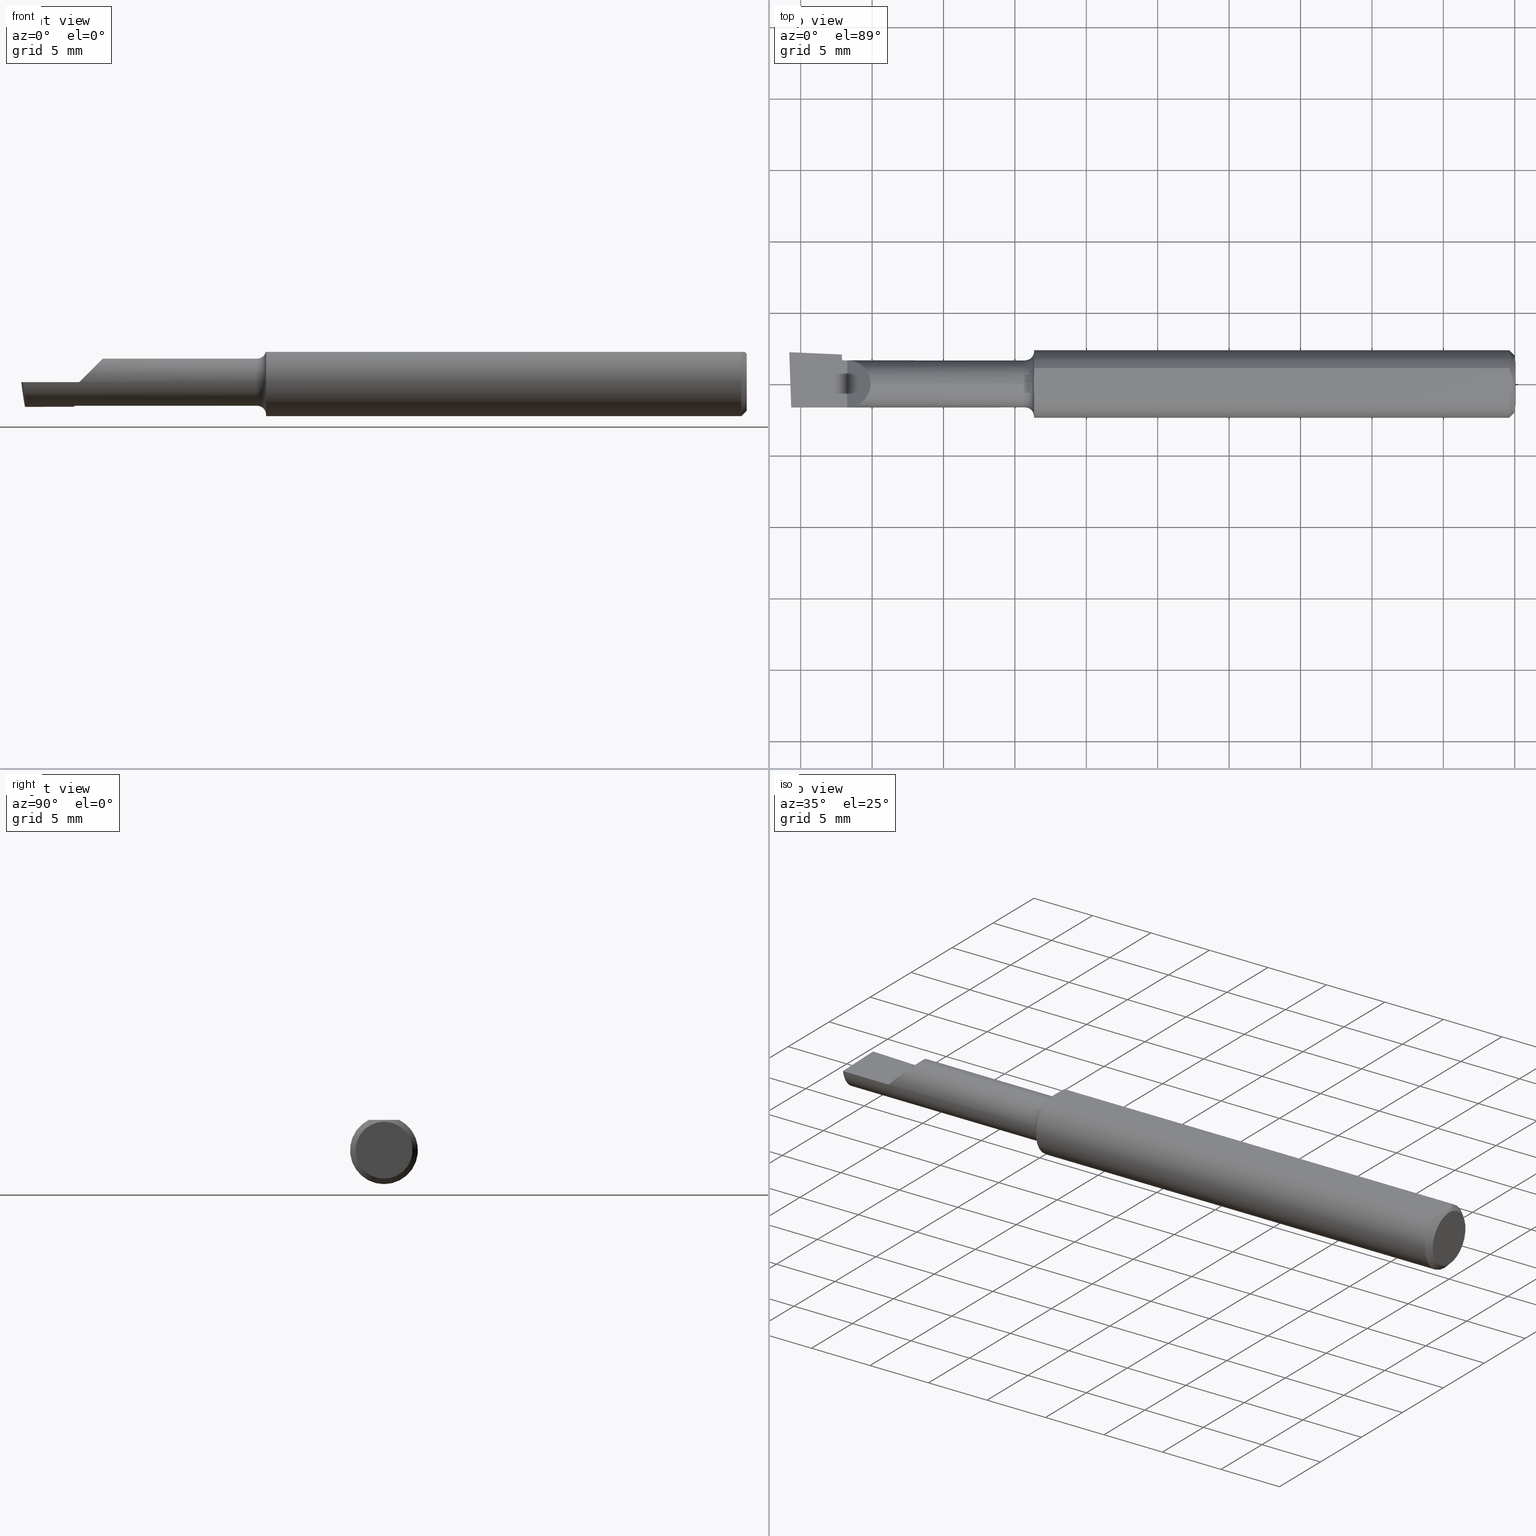
[diagram: canonical four-view strip — front | top / right | iso, engineering-drawing reading convention]
A machine part, canonical four-view strip (front | top / right | iso — engineering-drawing reading convention). The complete STEP part file that produces these views, byte-faithful:
ISO-10303-21;
HEADER;
FILE_DESCRIPTION (( 'STEP AP203' ),
    '1' );
FILE_NAME ('210414-LHBB155.STEP',
    '2024-08-28T20:50:09',
    ( '' ),
    ( '' ),
    'SwSTEP 2.0',
    'SolidWorks 2024',
    '' );
FILE_SCHEMA (( 'CONFIG_CONTROL_DESIGN' ));
ENDSEC;

DATA;
#1 = DIRECTION ( 'NONE',  ( 0.000000000000000000, 0.000000000000000000, 1.000000000000000000 ) ) ;
#2 = VERTEX_POINT ( 'NONE', #345 ) ;
#3 =( GEOMETRIC_REPRESENTATION_CONTEXT ( 3 ) GLOBAL_UNCERTAINTY_ASSIGNED_CONTEXT ( ( #112 ) ) GLOBAL_UNIT_ASSIGNED_CONTEXT ( ( #72, #673, #611 ) ) REPRESENTATION_CONTEXT ( 'NONE', 'WORKASPACE' ) );
#4 = DIRECTION ( 'NONE',  ( 1.000000000000000000, -0.000000000000000000, -0.000000000000000000 ) ) ;
#5 = ORIENTED_EDGE ( 'NONE', *, *, #358, .T. ) ;
#6 = CIRCLE ( 'NONE', #406, 0.09360000000000001652 ) ;
#7 = VECTOR ( 'NONE', #252, 39.37007874015748143 ) ;
#8 = CARTESIAN_POINT ( 'NONE',  ( -2.000000000000000444, 0.04209513035969843220, 0.08359999999999997988 ) ) ;
#9 = ORIENTED_EDGE ( 'NONE', *, *, #46, .T. ) ;
#10 = LINE ( 'NONE', #674, #458 ) ;
#11 = ADVANCED_FACE ( 'NONE', ( #14 ), #73, .T. ) ;
#12 = CARTESIAN_POINT ( 'NONE',  ( -1.850000000000000311, -0.005665123278597552353, -0.06475265537596347487 ) ) ;
#13 = DIRECTION ( 'NONE',  ( 1.000000000000000000, -0.000000000000000000, -0.000000000000000000 ) ) ;
#14 = FACE_OUTER_BOUND ( 'NONE', #544, .T. ) ;
#15 = DIRECTION ( 'NONE',  ( 0.000000000000000000, 0.000000000000000000, -1.000000000000000000 ) ) ;
#16 = CARTESIAN_POINT ( 'NONE',  ( -1.851050603401097838, -0.001891823710786209346, -0.06508277631223417792 ) ) ;
#17 = PRODUCT_RELATED_PRODUCT_CATEGORY ( 'detail', '', ( #23 ) ) ;
#18 = ADVANCED_FACE ( 'NONE', ( #125 ), #56, .F. ) ;
#19 = CARTESIAN_POINT ( 'NONE',  ( -1.350000000000000089, 0.000000000000000000, 0.06500000000000000222 ) ) ;
#20 = DIRECTION ( 'NONE',  ( -1.000000000000000000, 0.000000000000000000, 0.000000000000000000 ) ) ;
#21 = ADVANCED_BREP_SHAPE_REPRESENTATION ( '210414-LHBB155', ( #493, #600 ), #3 ) ;
#22 = DIRECTION ( 'NONE',  ( 0.000000000000000000, -1.000000000000000000, 0.000000000000000000 ) ) ;
#23 = PRODUCT ( '210414-LHBB155', '210414-LHBB155', '', ( #451 ) ) ;
#24 = CARTESIAN_POINT ( 'NONE',  ( 0.000000000000000000, 0.000000000000000000, 0.000000000000000000 ) ) ;
#25 = CARTESIAN_POINT ( 'NONE',  ( -1.325833080461093383, 0.005588935856989981320, 0.08360000000000000764 ) ) ;
#26 = CARTESIAN_POINT ( 'NONE',  ( -1.945637850341565445, 0.03061340754974763503, -0.06792661555281936936 ) ) ;
#27 = PERSON_AND_ORGANIZATION_ROLE ( 'classification_officer' ) ;
#28 = AXIS2_PLACEMENT_3D ( 'NONE', #609, #168, #507 ) ;
#29 = VECTOR ( 'NONE', #325, 39.37007874015748143 ) ;
#30 = DIRECTION ( 'NONE',  ( 0.000000000000000000, 0.000000000000000000, -1.000000000000000000 ) ) ;
#31 = CARTESIAN_POINT ( 'NONE',  ( -1.850000000000000311, 0.000000000000000000, 0.000000000000000000 ) ) ;
#32 = VERTEX_POINT ( 'NONE', #566 ) ;
#33 = CARTESIAN_POINT ( 'NONE',  ( -1.990306868116583416, -0.06488589007838074796, -0.03560733930374125611 ) ) ;
#34 = CARTESIAN_POINT ( 'NONE',  ( -1.325000000000000400, 0.04793338999999999933, 0.08360000000000000764 ) ) ;
#35 = ORIENTED_EDGE ( 'NONE', *, *, #358, .F. ) ;
#36 = AXIS2_PLACEMENT_3D ( 'NONE', #289, #225, #613 ) ;
#37 = DIRECTION ( 'NONE',  ( -1.000000000000000000, 0.000000000000000000, 0.000000000000000000 ) ) ;
#38 = AXIS2_PLACEMENT_3D ( 'NONE', #637, #86, #128 ) ;
#39 = LINE ( 'NONE', #185, #271 ) ;
#40 = ORIENTED_EDGE ( 'NONE', *, *, #269, .F. ) ;
#41 = CIRCLE ( 'NONE', #439, 0.07859999999999815745 ) ;
#42 = DIRECTION ( 'NONE',  ( -1.000000000000000000, 0.000000000000000000, 0.000000000000000000 ) ) ;
#43 = ORIENTED_EDGE ( 'NONE', *, *, #146, .F. ) ;
#44 = PERSON_AND_ORGANIZATION_ROLE ( 'design_supplier' ) ;
#45 = ADVANCED_FACE ( 'NONE', ( #403 ), #394, .T. ) ;
#46 = EDGE_CURVE ( 'NONE', #161, #377, #535, .T. ) ;
#47 = CARTESIAN_POINT ( 'NONE',  ( -1.840000000000000302, -0.06499723071023873200, 0.0005999999999998856725 ) ) ;
#48 = ORIENTED_EDGE ( 'NONE', *, *, #111, .T. ) ;
#49 = CARTESIAN_POINT ( 'NONE',  ( -0.01201717249260179921, -0.03546270869223500793, 0.08360000000000000764 ) ) ;
#50 = ORIENTED_EDGE ( 'NONE', *, *, #46, .F. ) ;
#51 = CARTESIAN_POINT ( 'NONE',  ( -0.009490183762107763307, -0.02858203235736569633, 0.08359999999999997988 ) ) ;
#52 = ORIENTED_EDGE ( 'NONE', *, *, #162, .T. ) ;
#53 = EDGE_LOOP ( 'NONE', ( #52, #129, #702, #191, #653, #55, #43, #575, #580, #375 ) ) ;
#54 = CYLINDRICAL_SURFACE ( 'NONE', #551, 0.06500000000000000222 ) ;
#55 = ORIENTED_EDGE ( 'NONE', *, *, #324, .T. ) ;
#56 = TOROIDAL_SURFACE ( 'NONE', #589, 0.06999999999999999278, 0.005000000000000000104 ) ;
#57 = DIRECTION ( 'NONE',  ( 1.000000000000000000, -0.000000000000000000, -0.000000000000000000 ) ) ;
#58 = CARTESIAN_POINT ( 'NONE',  ( -1.850000000000000311, 0.06500000000000000222, -1.868634782302818344E-17 ) ) ;
#59 = VECTOR ( 'NONE', #57, 39.37007874015748143 ) ;
#60 = VECTOR ( 'NONE', #419, 39.37007874015748854 ) ;
#61 = PERSON_AND_ORGANIZATION ( #88, #211 ) ;
#62 = ADVANCED_FACE ( 'NONE', ( #348 ), #630, .T. ) ;
#63 = FACE_OUTER_BOUND ( 'NONE', #159, .T. ) ;
#64 = DIRECTION ( 'NONE',  ( 1.000000000000000000, -0.000000000000000000, -0.000000000000000000 ) ) ;
#65 = COORDINATED_UNIVERSAL_TIME_OFFSET ( 8, 0, .BEHIND. ) ;
#66 = DIRECTION ( 'NONE',  ( 1.000000000000000000, -0.000000000000000000, -0.000000000000000000 ) ) ;
#67 = AXIS2_PLACEMENT_3D ( 'NONE', #690, #37, #30 ) ;
#68 = DIRECTION ( 'NONE',  ( 0.000000000000000000, 0.000000000000000000, 1.000000000000000000 ) ) ;
#69 = CARTESIAN_POINT ( 'NONE',  ( -1.325833080461093383, 0.000000000000000000, 0.08360000000000000764 ) ) ;
#70 = CARTESIAN_POINT ( 'NONE',  ( -1.855000000000000648, 0.02021677419128699998, -0.06701702799511861930 ) ) ;
#71 = CC_DESIGN_PERSON_AND_ORGANIZATION_ASSIGNMENT ( #319, #44, ( #489 ) ) ;
#72 =( CONVERSION_BASED_UNIT ( 'INCH', #565 ) LENGTH_UNIT ( ) NAMED_UNIT ( #594 ) );
#73 = PLANE ( 'NONE',  #368 ) ;
#74 = CARTESIAN_POINT ( 'NONE',  ( -1.988786421613012667, -0.005665123278597546282, -0.06475265537596341936 ) ) ;
#75 = DIRECTION ( 'NONE',  ( 0.000000000000000000, -1.224646799147353454E-16, -1.000000000000000000 ) ) ;
#76 = DIRECTION ( 'NONE',  ( 1.000000000000000000, -0.000000000000000000, -0.000000000000000000 ) ) ;
#77 = LINE ( 'NONE', #701, #210 ) ;
#78 = VERTEX_POINT ( 'NONE', #221 ) ;
#79 = ORIENTED_EDGE ( 'NONE', *, *, #307, .F. ) ;
#80 = VECTOR ( 'NONE', #327, 39.37007874015748854 ) ;
#81 = EDGE_CURVE ( 'NONE', #711, #89, #564, .T. ) ;
#82 = PLANE ( 'NONE',  #192 ) ;
#83 = PLANE ( 'NONE',  #126 ) ;
#84 = ORIENTED_EDGE ( 'NONE', *, *, #465, .F. ) ;
#85 = DATE_AND_TIME ( #448, #604 ) ;
#86 = DIRECTION ( 'NONE',  ( -1.000000000000000000, 0.000000000000000000, 0.000000000000000000 ) ) ;
#87 = DIRECTION ( 'NONE',  ( 0.000000000000000000, 1.000000000000000000, 0.000000000000000000 ) ) ;
#88 = PERSON ( 'UNSPECIFIED', 'UNSPECIFIED', 'UNSPECIFIED', ('UNSPECIFIED'), ('UNSPECIFIED'), ('UNSPECIFIED') ) ;
#89 = VERTEX_POINT ( 'NONE', #58 ) ;
#90 = APPROVAL_DATE_TIME ( #409, #141 ) ;
#91 = VECTOR ( 'NONE', #396, 39.37007874015748143 ) ;
#92 = CARTESIAN_POINT ( 'NONE',  ( 0.000000000000000000, 0.000000000000000000, 0.000000000000000000 ) ) ;
#93 = ADVANCED_FACE ( 'NONE', ( #508 ), #276, .T. ) ;
#94 = EDGE_CURVE ( 'NONE', #377, #520, #316, .T. ) ;
#95 = EDGE_LOOP ( 'NONE', ( #40, #413, #9, #384, #101, #426 ) ) ;
#96 = CIRCLE ( 'NONE', #429, 0.09360000000000001652 ) ;
#97 = CARTESIAN_POINT ( 'NONE',  ( 0.000000000000000000, 0.000000000000000000, 0.000000000000000000 ) ) ;
#98 = ORIENTED_EDGE ( 'NONE', *, *, #412, .T. ) ;
#99 = ORIENTED_EDGE ( 'NONE', *, *, #631, .F. ) ;
#100 = CARTESIAN_POINT ( 'NONE',  ( -1.933783156355727062, -0.06340542776733958108, -0.4961139287315174395 ) ) ;
#101 = ORIENTED_EDGE ( 'NONE', *, *, #148, .T. ) ;
#102 = DIRECTION ( 'NONE',  ( 0.000000000000000000, 1.000000000000000000, 0.000000000000000000 ) ) ;
#103 = EDGE_LOOP ( 'NONE', ( #207, #511, #50, #599, #593 ) ) ;
#104 = DIRECTION ( 'NONE',  ( -1.000000000000000000, 0.000000000000000000, 0.000000000000000000 ) ) ;
#105 =( BOUNDED_CURVE ( )  B_SPLINE_CURVE ( 3, ( #275, #620, #388, #347 ),
 .UNSPECIFIED., .F., .F. ) 
 B_SPLINE_CURVE_WITH_KNOTS ( ( 4, 4 ),
 ( 4.021702596540523089, 5.179980591436610382 ),
 .UNSPECIFIED. ) 
 CURVE ( )  GEOMETRIC_REPRESENTATION_ITEM ( )  RATIONAL_B_SPLINE_CURVE ( ( 1.000000000000000000, 0.8912894598796772261, 0.8912894598796772261, 1.000000000000000000 ) ) 
 REPRESENTATION_ITEM ( '' )  );
#106 = ORIENTED_EDGE ( 'NONE', *, *, #370, .T. ) ;
#107 = DIRECTION ( 'NONE',  ( 0.000000000000000000, 0.000000000000000000, 1.000000000000000000 ) ) ;
#108 = VERTEX_POINT ( 'NONE', #228 ) ;
#109 = LINE ( 'NONE', #229, #59 ) ;
#110 = EDGE_LOOP ( 'NONE', ( #486, #84, #309, #664, #470, #35 ) ) ;
#111 = EDGE_CURVE ( 'NONE', #2, #492, #145, .T. ) ;
#112 = UNCERTAINTY_MEASURE_WITH_UNIT (LENGTH_MEASURE( 1.000000000000000082E-05 ), #72, 'distance_accuracy_value', 'NONE');
#113 = FACE_OUTER_BOUND ( 'NONE', #110, .T. ) ;
#114 = CARTESIAN_POINT ( 'NONE',  ( -1.325000000000000400, 0.000000000000000000, 0.000000000000000000 ) ) ;
#115 = VECTOR ( 'NONE', #102, 39.37007874015748143 ) ;
#116 = VECTOR ( 'NONE', #4, 39.37007874015748143 ) ;
#117 = CARTESIAN_POINT ( 'NONE',  ( -1.986500062942040623, -0.1007723846355807473, -0.05643184818823019505 ) ) ;
#118 = COORDINATED_UNIVERSAL_TIME_OFFSET ( 8, 0, .BEHIND. ) ;
#119 = CC_DESIGN_PERSON_AND_ORGANIZATION_ASSIGNMENT ( #636, #243, ( #489 ) ) ;
#120 = DIRECTION ( 'NONE',  ( -0.02394144769889285443, 0.9959091512946225411, -0.08713076064000382925 ) ) ;
#121 = AXIS2_PLACEMENT_3D ( 'NONE', #114, #447, #670 ) ;
#122 = CARTESIAN_POINT ( 'NONE',  ( -1.853325552819781841, 0.006623271544731156035, -0.06582775061593533483 ) ) ;
#123 = CARTESIAN_POINT ( 'NONE',  ( -1.325000000000000400, 0.03333226664959939439, 0.08360000000000000764 ) ) ;
#124 = CARTESIAN_POINT ( 'NONE',  ( -1.850000000000000311, -0.005665123278597552353, -0.06475265537596347487 ) ) ;
#125 = FACE_OUTER_BOUND ( 'NONE', #103, .T. ) ;
#126 = AXIS2_PLACEMENT_3D ( 'NONE', #239, #569, #136 ) ;
#127 = PLANE ( 'NONE',  #378 ) ;
#128 = DIRECTION ( 'NONE',  ( 0.000000000000000000, 0.000000000000000000, 1.000000000000000000 ) ) ;
#129 = ORIENTED_EDGE ( 'NONE', *, *, #495, .T. ) ;
#130 = DIRECTION ( 'NONE',  ( -1.000000000000000000, 0.000000000000000000, -0.000000000000000000 ) ) ;
#131 = DIRECTION ( 'NONE',  ( 0.000000000000000000, 0.000000000000000000, -1.000000000000000000 ) ) ;
#132 = EDGE_LOOP ( 'NONE', ( #156, #235, #501, #201, #253 ) ) ;
#133 = EDGE_CURVE ( 'NONE', #78, #161, #560, .T. ) ;
#134 = DATE_AND_TIME ( #529, #700 ) ;
#135 = CARTESIAN_POINT ( 'NONE',  ( -0.005000000000001126807, -9.681310491162589007E-19, 0.08360000000000000764 ) ) ;
#136 = DIRECTION ( 'NONE',  ( 0.000000000000000000, 0.9961946980917454342, -0.08715574274765822138 ) ) ;
#137 = ORIENTED_EDGE ( 'NONE', *, *, #424, .T. ) ;
#138 = CARTESIAN_POINT ( 'NONE',  ( -1.999986001855434736, 0.08759761744008441597, -1.868634782302818344E-17 ) ) ;
#139 = DIRECTION ( 'NONE',  ( 0.000000000000000000, 0.000000000000000000, -1.000000000000000000 ) ) ;
#140 = ORIENTED_EDGE ( 'NONE', *, *, #324, .F. ) ;
#141 = APPROVAL ( #581, 'UNSPECIFIED' ) ;
#142 = ADVANCED_FACE ( 'NONE', ( #173 ), #397, .T. ) ;
#143 = LINE ( 'NONE', #317, #178 ) ;
#144 = ORIENTED_EDGE ( 'NONE', *, *, #196, .F. ) ;
#145 = CIRCLE ( 'NONE', #121, 0.08999999999999999667 ) ;
#146 = EDGE_CURVE ( 'NONE', #602, #386, #77, .T. ) ;
#147 = DIRECTION ( 'NONE',  ( 0.000000000000000000, -8.881784197001252323E-16, 1.000000000000000000 ) ) ;
#148 = EDGE_CURVE ( 'NONE', #520, #554, #143, .T. ) ;
#149 = ORIENTED_EDGE ( 'NONE', *, *, #423, .F. ) ;
#150 = VECTOR ( 'NONE', #452, 39.37007874015748143 ) ;
#151 = AXIS2_PLACEMENT_3D ( 'NONE', #691, #584, #351 ) ;
#152 = LINE ( 'NONE', #100, #80 ) ;
#153 = EDGE_LOOP ( 'NONE', ( #106, #504, #610, #187 ) ) ;
#154 = EDGE_CURVE ( 'NONE', #78, #635, #39, .T. ) ;
#155 = CARTESIAN_POINT ( 'NONE',  ( -1.851556035590118166, 8.550972087520532959E-13, -0.06524828944039233469 ) ) ;
#156 = ORIENTED_EDGE ( 'NONE', *, *, #332, .T. ) ;
#157 = VECTOR ( 'NONE', #251, 39.37007874015748854 ) ;
#158 = CARTESIAN_POINT ( 'NONE',  ( -1.840000000000000302, 0.06499723071023873200, 0.0005999999999998856725 ) ) ;
#159 = EDGE_LOOP ( 'NONE', ( #420, #272, #381 ) ) ;
#160 = CARTESIAN_POINT ( 'NONE',  ( -2.000000000000000444, 0.000000000000000000, -0.09360000000000001652 ) ) ;
#161 = VERTEX_POINT ( 'NONE', #522 ) ;
#162 = EDGE_CURVE ( 'NONE', #520, #567, #679, .T. ) ;
#163 = EDGE_CURVE ( 'NONE', #2, #713, #603, .T. ) ;
#164 = EDGE_LOOP ( 'NONE', ( #683, #262, #328, #576, #707, #417, #506, #214 ) ) ;
#165 = CARTESIAN_POINT ( 'NONE',  ( -1.350000000000000089, 0.000000000000000000, 0.000000000000000000 ) ) ;
#166 = DIRECTION ( 'NONE',  ( 1.000000000000000000, 0.000000000000000000, -0.000000000000000000 ) ) ;
#167 = PLANE ( 'NONE',  #436 ) ;
#168 = DIRECTION ( 'NONE',  ( 1.000000000000000000, -0.000000000000000000, -0.000000000000000000 ) ) ;
#169 = DIRECTION ( 'NONE',  ( -1.000000000000000000, 0.000000000000000000, 0.000000000000000000 ) ) ;
#170 = VECTOR ( 'NONE', #649, 39.37007874015748143 ) ;
#171 = EDGE_CURVE ( 'NONE', #108, #704, #198, .T. ) ;
#172 = LINE ( 'NONE', #117, #240 ) ;
#173 = FACE_OUTER_BOUND ( 'NONE', #153, .T. ) ;
#174 = APPROVAL_ROLE ( '' ) ;
#175 = CARTESIAN_POINT ( 'NONE',  ( -0.01500000000000134212, -0.04209513035969836975, 0.08360000000000000764 ) ) ;
#176 = DIRECTION ( 'NONE',  ( 0.000000000000000000, 0.000000000000000000, -1.000000000000000000 ) ) ;
#177 = CIRCLE ( 'NONE', #38, 0.06500000000000000222 ) ;
#178 = VECTOR ( 'NONE', #574, 39.37007874015748143 ) ;
#179 = FACE_OUTER_BOUND ( 'NONE', #312, .T. ) ;
#180 = CARTESIAN_POINT ( 'NONE',  ( -1.325000000000000178, -0.02777769619494438805, 0.08360000000000000764 ) ) ;
#181 = CARTESIAN_POINT ( 'NONE',  ( -1.850000000000000311, 0.000000000000000000, 0.000000000000000000 ) ) ;
#182 = CONICAL_SURFACE ( 'NONE', #274, 0.07859999999999897624, 0.7853981633974380649 ) ;
#183 = SHAPE_DEFINITION_REPRESENTATION ( #233, #21 ) ;
#184 = CARTESIAN_POINT ( 'NONE',  ( 0.000000000000000000, 0.1773215542719186189, -0.09360000000000001652 ) ) ;
#185 = CARTESIAN_POINT ( 'NONE',  ( -1.855000000000000204, 0.09359999999999998876, -1.868634782302818344E-17 ) ) ;
#186 = EDGE_CURVE ( 'NONE', #567, #89, #472, .T. ) ;
#187 = ORIENTED_EDGE ( 'NONE', *, *, #295, .T. ) ;
#188 = ORIENTED_EDGE ( 'NONE', *, *, #714, .T. ) ;
#189 = CARTESIAN_POINT ( 'NONE',  ( -0.005970397401143990104, 0.01447703772316297037, 0.08359999999999997988 ) ) ;
#190 = CARTESIAN_POINT ( 'NONE',  ( -1.900738563270822468, 0.02906244556632036485, -0.06779092396170981194 ) ) ;
#191 = ORIENTED_EDGE ( 'NONE', *, *, #485, .F. ) ;
#192 = AXIS2_PLACEMENT_3D ( 'NONE', #306, #521, #629 ) ;
#193 = CARTESIAN_POINT ( 'NONE',  ( -0.01202691846405174250, 0.03548437920186246070, 0.08360000000000000764 ) ) ;
#194 = DIRECTION ( 'NONE',  ( 0.000000000000000000, 1.000000000000000000, 0.000000000000000000 ) ) ;
#195 = ORIENTED_EDGE ( 'NONE', *, *, #260, .F. ) ;
#196 = EDGE_CURVE ( 'NONE', #482, #231, #41, .T. ) ;
#197 = APPROVAL_PERSON_ORGANIZATION ( #668, #379, #282 ) ;
#198 = LINE ( 'NONE', #34, #7 ) ;
#199 = ORIENTED_EDGE ( 'NONE', *, *, #296, .T. ) ;
#200 = DIRECTION ( 'NONE',  ( 1.000000000000000000, 0.000000000000000000, 0.000000000000000000 ) ) ;
#201 = ORIENTED_EDGE ( 'NONE', *, *, #538, .F. ) ;
#202 = LINE ( 'NONE', #431, #170 ) ;
#203 = ORIENTED_EDGE ( 'NONE', *, *, #433, .F. ) ;
#204 = CONICAL_SURFACE ( 'NONE', #578, 0.07859999999999897624, 0.7853981633974380649 ) ;
#205 = CARTESIAN_POINT ( 'NONE',  ( -1.840000000000000302, 0.09359999999999998876, -1.868634782302818344E-17 ) ) ;
#206 = ADVANCED_FACE ( 'NONE', ( #303 ), #83, .T. ) ;
#207 = ORIENTED_EDGE ( 'NONE', *, *, #186, .F. ) ;
#208 = CARTESIAN_POINT ( 'NONE',  ( -1.840000000000000302, -0.06500000000000000222, -1.868634782302818344E-17 ) ) ;
#209 = ORIENTED_EDGE ( 'NONE', *, *, #81, .F. ) ;
#210 = VECTOR ( 'NONE', #460, 39.37007874015748143 ) ;
#211 = ORGANIZATION ( 'UNSPECIFIED', 'UNSPECIFIED', '' ) ;
#212 = CARTESIAN_POINT ( 'NONE',  ( -1.775600000000000511, 0.03779801798803838347, 0.06500000000000000222 ) ) ;
#213 = B_SPLINE_CURVE_WITH_KNOTS ( 'NONE', 3,
 ( #467, #193, #350, #189, #410, #577 ),
 .UNSPECIFIED., .F., .F.,
 ( 4, 2, 4 ),
 ( 0.003229436762482374140, 0.003781973469718829042, 0.004334510176955284379 ),
 .UNSPECIFIED. ) ;
#214 = ORIENTED_EDGE ( 'NONE', *, *, #652, .F. ) ;
#215 = EDGE_CURVE ( 'NONE', #666, #161, #300, .T. ) ;
#216 = AXIS2_PLACEMENT_3D ( 'NONE', #364, #42, #634 ) ;
#217 = CARTESIAN_POINT ( 'NONE',  ( 0.000000000000000000, 0.000000000000000000, 0.000000000000000000 ) ) ;
#218 = CC_DESIGN_APPROVAL ( #141, ( #290 ) ) ;
#219 = ORIENTED_EDGE ( 'NONE', *, *, #680, .T. ) ;
#220 = CARTESIAN_POINT ( 'NONE',  ( -1.850000000000000311, 0.000000000000000000, -0.06999999999999999278 ) ) ;
#221 = CARTESIAN_POINT ( 'NONE',  ( -1.855000000000000204, 0.06999999999999999278, -1.868634782302818344E-17 ) ) ;
#222 = CALENDAR_DATE ( 2024, 28, 8 ) ;
#223 = DIRECTION ( 'NONE',  ( 0.000000000000000000, 1.000000000000000000, -0.000000000000000000 ) ) ;
#224 = ADVANCED_FACE ( 'NONE', ( #644 ), #519, .T. ) ;
#225 = DIRECTION ( 'NONE',  ( -0.9990482215818577982, 0.04361938736533622213, 0.000000000000000000 ) ) ;
#226 = COORDINATED_UNIVERSAL_TIME_OFFSET ( 8, 0, .BEHIND. ) ;
#227 = CARTESIAN_POINT ( 'NONE',  ( 0.000000000000000000, -7.960204194457796709E-18, -0.06500000000000000222 ) ) ;
#228 = CARTESIAN_POINT ( 'NONE',  ( -1.325000000000000178, 0.04209513035969839750, 0.08359999999999999376 ) ) ;
#229 = CARTESIAN_POINT ( 'NONE',  ( 0.000000000000000000, 0.000000000000000000, 0.06500000000000000222 ) ) ;
#230 = EDGE_LOOP ( 'NONE', ( #476, #450, #698, #341 ) ) ;
#231 = VERTEX_POINT ( 'NONE', #464 ) ;
#232 = B_SPLINE_CURVE_WITH_KNOTS ( 'NONE', 3,
 ( #299, #682, #244, #568, #180, #686 ),
 .UNSPECIFIED., .F., .F.,
 ( 4, 2, 4 ),
 ( 8.028707275784671734E-19, 0.0004232511140544140561, 0.0008465022281088272448 ),
 .UNSPECIFIED. ) ;
#233 = PRODUCT_DEFINITION_SHAPE ( 'NONE', 'NONE',  #557 ) ;
#234 = CARTESIAN_POINT ( 'NONE',  ( -1.840000000000000302, 0.06499723071023873200, 0.0005999999999998856725 ) ) ;
#235 = ORIENTED_EDGE ( 'NONE', *, *, #163, .T. ) ;
#236 = DIRECTION ( 'NONE',  ( 1.000000000000000000, 0.000000000000000000, -0.000000000000000000 ) ) ;
#237 = EDGE_CURVE ( 'NONE', #231, #482, #651, .T. ) ;
#238 = CARTESIAN_POINT ( 'NONE',  ( -1.855000000000000648, 0.02747372819701755439, -0.06765192920234908147 ) ) ;
#239 = CARTESIAN_POINT ( 'NONE',  ( 2.000025371934174956, -0.005665123278597553221, -0.06475265537596341936 ) ) ;
#240 = VECTOR ( 'NONE', #120, 39.37007874015748143 ) ;
#241 = ORIENTED_EDGE ( 'NONE', *, *, #572, .F. ) ;
#242 = CIRCLE ( 'NONE', #216, 0.09360000000000001652 ) ;
#243 = PERSON_AND_ORGANIZATION_ROLE ( 'creator' ) ;
#244 = CARTESIAN_POINT ( 'NONE',  ( -1.325666797554632348, -0.01111010775634522704, 0.08360000000000000764 ) ) ;
#245 = EDGE_LOOP ( 'NONE', ( #441, #537, #533, #596, #203 ) ) ;
#246 = CARTESIAN_POINT ( 'NONE',  ( -2.000001177757728232, 0.08803385514183426075, -1.868634782302818344E-17 ) ) ;
#247 = DIRECTION ( 'NONE',  ( 0.000000000000000000, 0.000000000000000000, 1.000000000000000000 ) ) ;
#248 = AXIS2_PLACEMENT_3D ( 'NONE', #559, #169, #617 ) ;
#249 = CC_DESIGN_DATE_AND_TIME_ASSIGNMENT ( #398, #292, ( #557 ) ) ;
#250 = ORIENTED_EDGE ( 'NONE', *, *, #586, .T. ) ;
#251 = DIRECTION ( 'NONE',  ( 0.03476711780020939890, -0.9993954410141494549, 0.000000000000000000 ) ) ;
#252 = DIRECTION ( 'NONE',  ( 0.000000000000000000, -1.000000000000000000, 0.000000000000000000 ) ) ;
#253 = ORIENTED_EDGE ( 'NONE', *, *, #659, .F. ) ;
#254 = DESIGN_CONTEXT ( 'detailed design', #555, 'design' ) ;
#255 = CARTESIAN_POINT ( 'NONE',  ( -1.350000000000000089, -1.102182119232617911E-17, -0.08999999999999999667 ) ) ;
#256 = VERTEX_POINT ( 'NONE', #642 ) ;
#257 = PERSON_AND_ORGANIZATION ( #88, #211 ) ;
#258 = CARTESIAN_POINT ( 'NONE',  ( -1.802203592376027119, -0.06464832592881071538, 0.03839640762397353996 ) ) ;
#259 = ORIENTED_EDGE ( 'NONE', *, *, #652, .T. ) ;
#260 = EDGE_CURVE ( 'NONE', #32, #453, #242, .T. ) ;
#261 = CARTESIAN_POINT ( 'NONE',  ( -1.325000000000000400, 0.000000000000000000, 0.000000000000000000 ) ) ;
#262 = ORIENTED_EDGE ( 'NONE', *, *, #171, .T. ) ;
#263 = AXIS2_PLACEMENT_3D ( 'NONE', #434, #104, #329 ) ;
#264 = CARTESIAN_POINT ( 'NONE',  ( -1.325000000000000178, 0.000000000000000000, 0.000000000000000000 ) ) ;
#265 = VERTEX_POINT ( 'NONE', #475 ) ;
#266 = LINE ( 'NONE', #369, #29 ) ;
#267 = ORIENTED_EDGE ( 'NONE', *, *, #606, .F. ) ;
#268 =( BOUNDED_CURVE ( )  B_SPLINE_CURVE ( 3, ( #425, #190, #26, #416 ),
 .UNSPECIFIED., .F., .T. ) 
 B_SPLINE_CURVE_WITH_KNOTS ( ( 4, 4 ),
 ( 5.867571780051298092, 5.883746320656183748 ),
 .UNSPECIFIED. ) 
 CURVE ( )  GEOMETRIC_REPRESENTATION_ITEM ( )  RATIONAL_B_SPLINE_CURVE ( ( 1.000000000000000000, 0.9999781988051756887, 0.9999781988051756887, 1.000000000000000000 ) ) 
 REPRESENTATION_ITEM ( '' )  );
#269 = EDGE_CURVE ( 'NONE', #666, #265, #268, .T. ) ;
#270 = FACE_OUTER_BOUND ( 'NONE', #339, .T. ) ;
#271 = VECTOR ( 'NONE', #194, 39.37007874015748143 ) ;
#272 = ORIENTED_EDGE ( 'NONE', *, *, #162, .F. ) ;
#273 = EDGE_CURVE ( 'NONE', #89, #78, #494, .T. ) ;
#274 = AXIS2_PLACEMENT_3D ( 'NONE', #97, #376, #1 ) ;
#275 = CARTESIAN_POINT ( 'NONE',  ( -1.989694924637884554, 0.03212651270882486282, -0.06805899510096122262 ) ) ;
#276 = PLANE ( 'NONE',  #402 ) ;
#277 = DATE_AND_TIME ( #395, #623 ) ;
#278 = EDGE_CURVE ( 'NONE', #428, #590, #638, .T. ) ;
#279 = ADVANCED_FACE ( 'NONE', ( #360 ), #311, .T. ) ;
#280 = CARTESIAN_POINT ( 'NONE',  ( 0.000000000000000000, 0.000000000000000000, 0.07859999999999897624 ) ) ;
#281 = CARTESIAN_POINT ( 'NONE',  ( -1.851556035590118166, 8.550972087520532959E-13, -0.06524828944039233469 ) ) ;
#282 = APPROVAL_ROLE ( '' ) ;
#283 = CARTESIAN_POINT ( 'NONE',  ( 0.000000000000000000, 1.054420894065859625E-17, -0.07859999999999815745 ) ) ;
#284 = ADVANCED_FACE ( 'NONE', ( #427 ), #182, .T. ) ;
#285 = AXIS2_PLACEMENT_3D ( 'NONE', #573, #76, #302 ) ;
#286 = DIRECTION ( 'NONE',  ( 0.000000000000000000, 0.000000000000000000, 1.000000000000000000 ) ) ;
#287 = LINE ( 'NONE', #445, #562 ) ;
#288 = CARTESIAN_POINT ( 'NONE',  ( -1.350000000000000089, 0.000000000000000000, 0.08999999999999999667 ) ) ;
#289 = CARTESIAN_POINT ( 'NONE',  ( -1.999999999999999778, 0.008000000000000007105, 0.008000000000000000167 ) ) ;
#290 = SECURITY_CLASSIFICATION ( '', '', #534 ) ;
#291 = ORIENTED_EDGE ( 'NONE', *, *, #495, .F. ) ;
#292 = DATE_TIME_ROLE ( 'creation_date' ) ;
#293 = CARTESIAN_POINT ( 'NONE',  ( -1.855000000000000204, 0.08126739189054085766, -1.894732701424001633E-17 ) ) ;
#294 = CARTESIAN_POINT ( 'NONE',  ( -1.840000000000000302, 0.000000000000000000, 0.0005999999999998856725 ) ) ;
#295 = EDGE_CURVE ( 'NONE', #542, #585, #266, .T. ) ;
#296 = EDGE_CURVE ( 'NONE', #648, #590, #601, .T. ) ;
#297 = CARTESIAN_POINT ( 'NONE',  ( -1.840000000000000302, 0.06500000000000000222, -1.868634782302818344E-17 ) ) ;
#298 =( BOUNDED_CURVE ( )  B_SPLINE_CURVE ( 3, ( #525, #33, #363, #74 ),
 .UNSPECIFIED., .F., .F. ) 
 B_SPLINE_CURVE_WITH_KNOTS ( ( 4, 4 ),
 ( 4.991545102299929759, 6.471860874433886579 ),
 .UNSPECIFIED. ) 
 CURVE ( )  GEOMETRIC_REPRESENTATION_ITEM ( )  RATIONAL_B_SPLINE_CURVE ( ( 1.000000000000000000, 0.8255747259062508059, 0.8255747259062508059, 1.000000000000000000 ) ) 
 REPRESENTATION_ITEM ( '' )  );
#299 = CARTESIAN_POINT ( 'NONE',  ( -1.325833080461093383, 0.000000000000000000, 0.08360000000000000764 ) ) ;
#300 = LINE ( 'NONE', #421, #60 ) ;
#301 = ORIENTED_EDGE ( 'NONE', *, *, #680, .F. ) ;
#302 = DIRECTION ( 'NONE',  ( 0.000000000000000000, 0.000000000000000000, -1.000000000000000000 ) ) ;
#303 = FACE_OUTER_BOUND ( 'NONE', #95, .T. ) ;
#304 = AXIS2_PLACEMENT_3D ( 'NONE', #220, #393, #15 ) ;
#305 = EDGE_LOOP ( 'NONE', ( #144, #188, #195, #259, #241 ) ) ;
#306 = CARTESIAN_POINT ( 'NONE',  ( -1.939086209087548252, 0.08959508375131486346, -0.4962730758206618797 ) ) ;
#307 = EDGE_CURVE ( 'NONE', #256, #453, #660, .T. ) ;
#308 = CARTESIAN_POINT ( 'NONE',  ( -2.000000000000000444, 0.000000000000000000, 0.000000000000000000 ) ) ;
#309 = ORIENTED_EDGE ( 'NONE', *, *, #111, .F. ) ;
#310 = CARTESIAN_POINT ( 'NONE',  ( -1.325000000000000400, 0.03333226664959939439, 0.08360000000000000764 ) ) ;
#311 = CYLINDRICAL_SURFACE ( 'NONE', #430, 0.06500000000000000222 ) ;
#312 = EDGE_LOOP ( 'NONE', ( #301, #643, #140, #318 ) ) ;
#313 = CC_DESIGN_APPROVAL ( #640, ( #557 ) ) ;
#314 = AXIS2_PLACEMENT_3D ( 'NONE', #308, #703, #356 ) ;
#315 = EDGE_CURVE ( 'NONE', #693, #713, #531, .T. ) ;
#316 = B_SPLINE_CURVE_WITH_KNOTS ( 'NONE', 3,
 ( #281, #16, #500, #12 ),
 .UNSPECIFIED., .F., .F.,
 ( 4, 4 ),
 ( 0.0005234545602409122755, 0.0006729703610254871233 ),
 .UNSPECIFIED. ) ;
#317 = CARTESIAN_POINT ( 'NONE',  ( -1.855000000000000204, -0.005665123278597547149, -0.06475265537596341936 ) ) ;
#318 = ORIENTED_EDGE ( 'NONE', *, *, #278, .T. ) ;
#319 = PERSON_AND_ORGANIZATION ( #88, #211 ) ;
#320 = AXIS2_PLACEMENT_3D ( 'NONE', #261, #440, #107 ) ;
#321 = AXIS2_PLACEMENT_3D ( 'NONE', #31, #411, #131 ) ;
#322 = LINE ( 'NONE', #205, #115 ) ;
#323 = ORIENTED_EDGE ( 'NONE', *, *, #515, .F. ) ;
#324 = EDGE_CURVE ( 'NONE', #428, #386, #518, .T. ) ;
#325 = DIRECTION ( 'NONE',  ( -1.000000000000000000, 0.000000000000000000, 0.000000000000000000 ) ) ;
#326 = ORIENTED_EDGE ( 'NONE', *, *, #632, .F. ) ;
#327 = DIRECTION ( 'NONE',  ( -0.1218275818249038717, -0.003190167502629706348, 0.9925461516413236485 ) ) ;
#328 = ORIENTED_EDGE ( 'NONE', *, *, #659, .T. ) ;
#329 = DIRECTION ( 'NONE',  ( 0.000000000000000000, 0.000000000000000000, 1.000000000000000000 ) ) ;
#330 = ORIENTED_EDGE ( 'NONE', *, *, #163, .F. ) ;
#331 = CARTESIAN_POINT ( 'NONE',  ( -1.325000000000000178, 0.000000000000000000, 0.000000000000000000 ) ) ;
#332 = EDGE_CURVE ( 'NONE', #704, #2, #628, .T. ) ;
#333 = EDGE_LOOP ( 'NONE', ( #422, #323, #99, #137, #540 ) ) ;
#334 = DIRECTION ( 'NONE',  ( 0.000000000000000000, 0.000000000000000000, 1.000000000000000000 ) ) ;
#335 = ORIENTED_EDGE ( 'NONE', *, *, #296, .F. ) ;
#336 = TOROIDAL_SURFACE ( 'NONE', #685, 0.06999999999999999278, 0.005000000000000000104 ) ;
#337 = AXIS2_PLACEMENT_3D ( 'NONE', #366, #200, #579 ) ;
#338 = CARTESIAN_POINT ( 'NONE',  ( -1.855000000000000648, 0.02747372819701755439, -0.06765192920234908147 ) ) ;
#339 = EDGE_LOOP ( 'NONE', ( #291, #357, #209, #219, #335, #677, #607 ) ) ;
#340 = APPROVAL_STATUS ( 'not_yet_approved' ) ;
#341 = ORIENTED_EDGE ( 'NONE', *, *, #215, .F. ) ;
#342 = DIRECTION ( 'NONE',  ( -0.7071067811865547892, 8.659560562354844111E-17, -0.7071067811865402453 ) ) ;
#343 = CARTESIAN_POINT ( 'NONE',  ( 0.000000000000000000, 0.000000000000000000, 0.000000000000000000 ) ) ;
#344 = APPROVAL_PERSON_ORGANIZATION ( #61, #640, #174 ) ;
#345 = CARTESIAN_POINT ( 'NONE',  ( -1.325000000000000178, -1.102182119232618065E-17, -0.08999999999999999667 ) ) ;
#346 = DIRECTION ( 'NONE',  ( 0.000000000000000000, 0.000000000000000000, 1.000000000000000000 ) ) ;
#347 = CARTESIAN_POINT ( 'NONE',  ( -1.999986001855434736, 0.08759761744008441597, -1.868634782302818344E-17 ) ) ;
#348 = FACE_OUTER_BOUND ( 'NONE', #514, .T. ) ;
#349 = CC_DESIGN_SECURITY_CLASSIFICATION ( #290, ( #489 ) ) ;
#350 = CARTESIAN_POINT ( 'NONE',  ( -0.009475411754487331542, 0.02854313683484921427, 0.08360000000000000764 ) ) ;
#351 = DIRECTION ( 'NONE',  ( 1.000000000000000000, 0.000000000000000000, 0.000000000000000000 ) ) ;
#352 = ORIENTED_EDGE ( 'NONE', *, *, #619, .T. ) ;
#353 = B_SPLINE_CURVE_WITH_KNOTS ( 'NONE', 3,
 ( #545, #481, #657, #51, #49, #712 ),
 .UNSPECIFIED., .F., .F.,
 ( 4, 2, 4 ),
 ( 0.004334510176955284379, 0.004885670013052439281, 0.005436829849149593316 ),
 .UNSPECIFIED. ) ;
#354 = COORDINATED_UNIVERSAL_TIME_OFFSET ( 8, 0, .BEHIND. ) ;
#355 = DIRECTION ( 'NONE',  ( -0.000000000000000000, 0.000000000000000000, 1.000000000000000000 ) ) ;
#356 = DIRECTION ( 'NONE',  ( 0.000000000000000000, 0.000000000000000000, -1.000000000000000000 ) ) ;
#357 = ORIENTED_EDGE ( 'NONE', *, *, #186, .T. ) ;
#358 = EDGE_CURVE ( 'NONE', #256, #108, #6, .T. ) ;
#359 = CARTESIAN_POINT ( 'NONE',  ( -1.775600000000000511, 0.000000000000000000, 0.06500000000000000222 ) ) ;
#360 = FACE_OUTER_BOUND ( 'NONE', #53, .T. ) ;
#361 = EDGE_LOOP ( 'NONE', ( #149, #352, #432, #98, #708, #461, #479 ) ) ;
#362 = EDGE_CURVE ( 'NONE', #645, #542, #353, .T. ) ;
#363 = CARTESIAN_POINT ( 'NONE',  ( -1.987938684733187467, -0.04092902741362482860, -0.06166746353248374335 ) ) ;
#364 = CARTESIAN_POINT ( 'NONE',  ( -0.01500000000000134212, 0.000000000000000000, 0.000000000000000000 ) ) ;
#365 = ORIENTED_EDGE ( 'NONE', *, *, #278, .F. ) ;
#366 = CARTESIAN_POINT ( 'NONE',  ( 0.000000000000000000, 0.000000000000000000, 0.000000000000000000 ) ) ;
#367 = PERSON_AND_ORGANIZATION ( #88, #211 ) ;
#368 = AXIS2_PLACEMENT_3D ( 'NONE', #294, #675, #22 ) ;
#369 = CARTESIAN_POINT ( 'NONE',  ( -2.000000000000000444, -0.04209513035969843220, 0.08359999999999997988 ) ) ;
#370 = EDGE_CURVE ( 'NONE', #585, #256, #96, .T. ) ;
#371 = VERTEX_POINT ( 'NONE', #536 ) ;
#372 = AXIS2_PLACEMENT_3D ( 'NONE', #654, #383, #605 ) ;
#373 = CARTESIAN_POINT ( 'NONE',  ( -1.775600000000000511, -0.03779801798803838347, 0.06500000000000000222 ) ) ;
#374 = APPLICATION_CONTEXT ( 'configuration controlled 3d designs of mechanical parts and assemblies' ) ;
#375 = ORIENTED_EDGE ( 'NONE', *, *, #148, .F. ) ;
#376 = DIRECTION ( 'NONE',  ( -1.000000000000000000, 0.000000000000000000, 0.000000000000000000 ) ) ;
#377 = VERTEX_POINT ( 'NONE', #155 ) ;
#378 = AXIS2_PLACEMENT_3D ( 'NONE', #404, #236, #346 ) ;
#379 = APPROVAL ( #340, 'UNSPECIFIED' ) ;
#380 = DIRECTION ( 'NONE',  ( 0.000000000000000000, 0.000000000000000000, 1.000000000000000000 ) ) ;
#381 = ORIENTED_EDGE ( 'NONE', *, *, #94, .F. ) ;
#382 = LOCAL_TIME ( 13, 50, 9.000000000000000000, #354 ) ;
#383 = DIRECTION ( 'NONE',  ( -1.000000000000000000, 0.000000000000000000, 0.000000000000000000 ) ) ;
#384 = ORIENTED_EDGE ( 'NONE', *, *, #94, .T. ) ;
#385 = CARTESIAN_POINT ( 'NONE',  ( -1.325000000000000844, -0.04209513035969843220, 0.08359999999999997988 ) ) ;
#386 = VERTEX_POINT ( 'NONE', #208 ) ;
#387 = PERSON_AND_ORGANIZATION ( #88, #211 ) ;
#388 = CARTESIAN_POINT ( 'NONE',  ( -1.995866272435199873, 0.08413964946451013560, -0.03255427885932744847 ) ) ;
#389 = CARTESIAN_POINT ( 'NONE',  ( -2.000000000000000444, 0.000000000000000000, 0.000000000000000000 ) ) ;
#390 = ADVANCED_FACE ( 'NONE', ( #270 ), #54, .T. ) ;
#391 = PERSON_AND_ORGANIZATION_ROLE ( 'design_owner' ) ;
#392 = AXIS2_PLACEMENT_3D ( 'NONE', #165, #13, #334 ) ;
#393 = DIRECTION ( 'NONE',  ( -0.000000000000000000, -1.000000000000000000, -0.000000000000000000 ) ) ;
#394 = CYLINDRICAL_SURFACE ( 'NONE', #656, 0.09360000000000001652 ) ;
#395 = CALENDAR_DATE ( 2024, 28, 8 ) ;
#396 = DIRECTION ( 'NONE',  ( -0.7071067811865547892, 0.000000000000000000, 0.7071067811865402453 ) ) ;
#397 = CYLINDRICAL_SURFACE ( 'NONE', #314, 0.09360000000000001652 ) ;
#398 = DATE_AND_TIME ( #222, #401 ) ;
#399 = CC_DESIGN_DATE_AND_TIME_ASSIGNMENT ( #134, #462, ( #290 ) ) ;
#400 = EDGE_CURVE ( 'NONE', #428, #648, #646, .T. ) ;
#401 = LOCAL_TIME ( 13, 50, 9.000000000000000000, #118 ) ;
#402 = AXIS2_PLACEMENT_3D ( 'NONE', #497, #286, #166 ) ;
#403 = FACE_OUTER_BOUND ( 'NONE', #435, .T. ) ;
#404 = CARTESIAN_POINT ( 'NONE',  ( -1.840000000000000302, 0.000000000000000000, 0.000000000000000000 ) ) ;
#405 = FACE_OUTER_BOUND ( 'NONE', #333, .T. ) ;
#406 = AXIS2_PLACEMENT_3D ( 'NONE', #331, #539, #147 ) ;
#407 = CARTESIAN_POINT ( 'NONE',  ( -1.851556035590118166, 8.550972087520532959E-13, -0.06524828944039233469 ) ) ;
#408 = APPROVAL_PERSON_ORGANIZATION ( #257, #141, #689 ) ;
#409 = DATE_AND_TIME ( #694, #382 ) ;
#410 = CARTESIAN_POINT ( 'NONE',  ( -0.004999999999999964542, 0.007317184349923022864, 0.08360000000000000764 ) ) ;
#411 = DIRECTION ( 'NONE',  ( 1.000000000000000000, -0.000000000000000000, -0.000000000000000000 ) ) ;
#412 = EDGE_CURVE ( 'NONE', #386, #711, #322, .T. ) ;
#413 = ORIENTED_EDGE ( 'NONE', *, *, #215, .T. ) ;
#414 = APPROVAL_DATE_TIME ( #85, #379 ) ;
#415 = CARTESIAN_POINT ( 'NONE',  ( -1.325833080461093383, 0.000000000000000000, 0.08360000000000000764 ) ) ;
#416 = CARTESIAN_POINT ( 'NONE',  ( -1.989694924637884554, 0.03212651270882486282, -0.06805899510096122262 ) ) ;
#417 = ORIENTED_EDGE ( 'NONE', *, *, #295, .F. ) ;
#418 = CARTESIAN_POINT ( 'NONE',  ( -1.325000000000000400, 0.02777908199771310024, 0.08360000000000000764 ) ) ;
#419 = DIRECTION ( 'NONE',  ( 0.000000000000000000, -0.9961946980917454342, 0.08715574274765822138 ) ) ;
#420 = ORIENTED_EDGE ( 'NONE', *, *, #477, .F. ) ;
#421 = CARTESIAN_POINT ( 'NONE',  ( -1.855000000000000648, -0.005665123278597553221, -0.06475265537596341936 ) ) ;
#422 = ORIENTED_EDGE ( 'NONE', *, *, #548, .F. ) ;
#423 = EDGE_CURVE ( 'NONE', #655, #635, #202, .T. ) ;
#424 = EDGE_CURVE ( 'NONE', #371, #602, #152, .T. ) ;
#425 = CARTESIAN_POINT ( 'NONE',  ( -1.855000000000000648, 0.02747372819701755439, -0.06765192920234908147 ) ) ;
#426 = ORIENTED_EDGE ( 'NONE', *, *, #515, .T. ) ;
#427 = FACE_OUTER_BOUND ( 'NONE', #305, .T. ) ;
#428 = VERTEX_POINT ( 'NONE', #541 ) ;
#429 = AXIS2_PLACEMENT_3D ( 'NONE', #264, #598, #380 ) ;
#430 = AXIS2_PLACEMENT_3D ( 'NONE', #526, #491, #437 ) ;
#431 = CARTESIAN_POINT ( 'NONE',  ( -1.996531278631949347, 0.08744678096665912947, -1.920830620545185230E-17 ) ) ;
#432 = ORIENTED_EDGE ( 'NONE', *, *, #146, .T. ) ;
#433 = EDGE_CURVE ( 'NONE', #453, #542, #517, .T. ) ;
#434 = CARTESIAN_POINT ( 'NONE',  ( -0.01500000000000134212, 0.000000000000000000, 0.000000000000000000 ) ) ;
#435 = EDGE_LOOP ( 'NONE', ( #79, #5, #466, #473 ) ) ;
#436 = AXIS2_PLACEMENT_3D ( 'NONE', #622, #68, #678 ) ;
#437 = DIRECTION ( 'NONE',  ( 0.000000000000000000, 0.000000000000000000, 1.000000000000000000 ) ) ;
#438 = ORIENTED_EDGE ( 'NONE', *, *, #538, .T. ) ;
#439 = AXIS2_PLACEMENT_3D ( 'NONE', #92, #530, #247 ) ;
#440 = DIRECTION ( 'NONE',  ( -1.000000000000000000, 0.000000000000000000, 0.000000000000000000 ) ) ;
#441 = ORIENTED_EDGE ( 'NONE', *, *, #714, .F. ) ;
#442 = CARTESIAN_POINT ( 'NONE',  ( -1.854999999999999982, 0.07804055913548292589, -0.03204518438839074057 ) ) ;
#443 = ADVANCED_FACE ( 'NONE', ( #549 ), #672, .F. ) ;
#444 = CARTESIAN_POINT ( 'NONE',  ( 0.000000000000000000, 0.06500000000000000222, -1.868634782302818344E-17 ) ) ;
#445 = CARTESIAN_POINT ( 'NONE',  ( 0.000000000000000000, 9.625723841298071048E-18, -0.07859999999999897624 ) ) ;
#446 = FACE_OUTER_BOUND ( 'NONE', #132, .T. ) ;
#447 = DIRECTION ( 'NONE',  ( -1.000000000000000000, 0.000000000000000000, 0.000000000000000000 ) ) ;
#448 = CALENDAR_DATE ( 2024, 28, 8 ) ;
#449 = CARTESIAN_POINT ( 'NONE',  ( -1.850000000000000311, 0.000000000000000000, 0.000000000000000000 ) ) ;
#450 = ORIENTED_EDGE ( 'NONE', *, *, #154, .F. ) ;
#451 = MECHANICAL_CONTEXT ( 'NONE', #374, 'mechanical' ) ;
#452 = DIRECTION ( 'NONE',  ( 1.000000000000000000, -0.000000000000000000, -0.000000000000000000 ) ) ;
#453 = VERTEX_POINT ( 'NONE', #612 ) ;
#454 = APPLICATION_PROTOCOL_DEFINITION ( 'international standard', 'config_control_design', 1994, #374 ) ;
#455 = LINE ( 'NONE', #246, #157 ) ;
#456 = DIRECTION ( 'NONE',  ( 0.000000000000000000, 0.000000000000000000, -1.000000000000000000 ) ) ;
#457 = PLANE ( 'NONE',  #469 ) ;
#458 = VECTOR ( 'NONE', #558, 39.37007874015748143 ) ;
#459 = AXIS2_PLACEMENT_3D ( 'NONE', #468, #513, #647 ) ;
#460 = DIRECTION ( 'NONE',  ( 1.000000000000000000, -0.000000000000000000, -0.000000000000000000 ) ) ;
#461 = ORIENTED_EDGE ( 'NONE', *, *, #273, .T. ) ;
#462 = DATE_TIME_ROLE ( 'classification_date' ) ;
#463 = CARTESIAN_POINT ( 'NONE',  ( -1.855000000000000204, 0.08126739189054085766, -1.894732701424001633E-17 ) ) ;
#464 = CARTESIAN_POINT ( 'NONE',  ( 0.000000000000000000, 0.000000000000000000, 0.07859999999999815745 ) ) ;
#465 = EDGE_CURVE ( 'NONE', #492, #585, #10, .T. ) ;
#466 = ORIENTED_EDGE ( 'NONE', *, *, #583, .T. ) ;
#467 = CARTESIAN_POINT ( 'NONE',  ( -0.01500000000000134212, 0.04209513035969836975, 0.08360000000000000764 ) ) ;
#468 = CARTESIAN_POINT ( 'NONE',  ( -1.855000000000000204, 0.06500000000000000222, 0.000000000000000000 ) ) ;
#469 = AXIS2_PLACEMENT_3D ( 'NONE', #184, #130, #355 ) ;
#470 = ORIENTED_EDGE ( 'NONE', *, *, #171, .F. ) ;
#471 = DIRECTION ( 'NONE',  ( 1.000000000000000000, -0.000000000000000000, -0.000000000000000000 ) ) ;
#472 = CIRCLE ( 'NONE', #662, 0.06500000000000000222 ) ;
#473 = ORIENTED_EDGE ( 'NONE', *, *, #260, .T. ) ;
#474 = ADVANCED_FACE ( 'NONE', ( #553 ), #204, .T. ) ;
#475 = CARTESIAN_POINT ( 'NONE',  ( -1.989694924637884554, 0.03212651270882486282, -0.06805899510096122262 ) ) ;
#476 = ORIENTED_EDGE ( 'NONE', *, *, #586, .F. ) ;
#477 = EDGE_CURVE ( 'NONE', #567, #377, #614, .T. ) ;
#478 = DIRECTION ( 'NONE',  ( 1.000000000000000000, -0.000000000000000000, -0.000000000000000000 ) ) ;
#479 = ORIENTED_EDGE ( 'NONE', *, *, #154, .T. ) ;
#480 = ADVANCED_FACE ( 'NONE', ( #63 ), #336, .F. ) ;
#481 = CARTESIAN_POINT ( 'NONE',  ( -0.004999999999999928113, -0.007298950593105400959, 0.08360000000000000764 ) ) ;
#482 = VERTEX_POINT ( 'NONE', #283 ) ;
#483 = TOROIDAL_SURFACE ( 'NONE', #392, 0.08999999999999999667, 0.02499999999999979669 ) ;
#484 = DIRECTION ( 'NONE',  ( 0.000000000000000000, 0.000000000000000000, -1.000000000000000000 ) ) ;
#485 = EDGE_CURVE ( 'NONE', #648, #693, #109, .T. ) ;
#486 = ORIENTED_EDGE ( 'NONE', *, *, #370, .F. ) ;
#487 = CARTESIAN_POINT ( 'NONE',  ( -1.802203592376027119, 0.06464832592881071538, 0.03839640762397353996 ) ) ;
#488 = ORIENTED_EDGE ( 'NONE', *, *, #423, .T. ) ;
#489 = PRODUCT_DEFINITION_FORMATION_WITH_SPECIFIED_SOURCE ( 'ANY', '', #23, .NOT_KNOWN. ) ;
#490 = CLOSED_SHELL ( 'NONE', ( #18, #547, #284, #142, #279, #206, #224, #667, #681, #390, #45, #93, #474, #443, #597, #11, #705, #480, #62, #671 ) ) ;
#491 = DIRECTION ( 'NONE',  ( 1.000000000000000000, -0.000000000000000000, -0.000000000000000000 ) ) ;
#492 = VERTEX_POINT ( 'NONE', #616 ) ;
#493 = MANIFOLD_SOLID_BREP ( 'Cut-Extrude1', #490 ) ;
#494 = CIRCLE ( 'NONE', #151, 0.005000000000000083371 ) ;
#495 = EDGE_CURVE ( 'NONE', #567, #713, #665, .T. ) ;
#496 = CARTESIAN_POINT ( 'NONE',  ( -1.988786421613012667, -0.005665123278597546282, -0.06475265537596341936 ) ) ;
#497 = CARTESIAN_POINT ( 'NONE',  ( 1.999986001855434736, 0.04793338999999999933, 0.08360000000000000764 ) ) ;
#498 = PERSON_AND_ORGANIZATION ( #88, #211 ) ;
#499 = DIRECTION ( 'NONE',  ( 1.000000000000000000, -0.000000000000000000, -0.000000000000000000 ) ) ;
#500 = CARTESIAN_POINT ( 'NONE',  ( -1.850524387371879076, -0.003781538268994270088, -0.06491744771109111967 ) ) ;
#501 = ORIENTED_EDGE ( 'NONE', *, *, #315, .F. ) ;
#502 = DIRECTION ( 'NONE',  ( 0.000000000000000000, 0.000000000000000000, 1.000000000000000000 ) ) ;
#503 = DIRECTION ( 'NONE',  ( 0.000000000000000000, 0.000000000000000000, 1.000000000000000000 ) ) ;
#504 = ORIENTED_EDGE ( 'NONE', *, *, #307, .T. ) ;
#505 = CC_DESIGN_PERSON_AND_ORGANIZATION_ASSIGNMENT ( #498, #615, ( #557 ) ) ;
#506 = ORIENTED_EDGE ( 'NONE', *, *, #362, .F. ) ;
#507 = DIRECTION ( 'NONE',  ( 0.000000000000000000, 0.000000000000000000, 1.000000000000000000 ) ) ;
#508 = FACE_OUTER_BOUND ( 'NONE', #164, .T. ) ;
#509 = APPROVAL_STATUS ( 'not_yet_approved' ) ;
#510 = CARTESIAN_POINT ( 'NONE',  ( -1.854999999999999982, 0.05798824358870009049, -0.05726335579688408145 ) ) ;
#511 = ORIENTED_EDGE ( 'NONE', *, *, #477, .T. ) ;
#512 = CARTESIAN_POINT ( 'NONE',  ( -1.325666838436685646, 0.01110899514292346124, 0.08359999999999997988 ) ) ;
#513 = DIRECTION ( 'NONE',  ( 1.000000000000000000, 0.000000000000000000, -0.000000000000000000 ) ) ;
#514 = EDGE_LOOP ( 'NONE', ( #250, #661, #688, #488 ) ) ;
#515 = EDGE_CURVE ( 'NONE', #554, #265, #172, .T. ) ;
#516 = FACE_OUTER_BOUND ( 'NONE', #361, .T. ) ;
#517 = CIRCLE ( 'NONE', #263, 0.09360000000000001652 ) ;
#518 = CIRCLE ( 'NONE', #592, 0.06500000000000000222 ) ;
#519 = PLANE ( 'NONE',  #459 ) ;
#520 = VERTEX_POINT ( 'NONE', #124 ) ;
#521 = DIRECTION ( 'NONE',  ( -0.9919466430058313522, -0.03450798790307643693, -0.1218649096349841143 ) ) ;
#522 = CARTESIAN_POINT ( 'NONE',  ( -1.855000000000000648, 0.02021677419128699998, -0.06701702799511861930 ) ) ;
#523 = ORIENTED_EDGE ( 'NONE', *, *, #237, .T. ) ;
#524 = COORDINATED_UNIVERSAL_TIME_OFFSET ( 8, 0, .BEHIND. ) ;
#525 = CARTESIAN_POINT ( 'NONE',  ( -1.994651770292973358, -0.06499941245296748937, -0.0002089162432946602328 ) ) ;
#526 = CARTESIAN_POINT ( 'NONE',  ( 0.000000000000000000, 0.000000000000000000, 0.000000000000000000 ) ) ;
#527 = CC_DESIGN_PERSON_AND_ORGANIZATION_ASSIGNMENT ( #367, #27, ( #290 ) ) ;
#528 = VERTEX_POINT ( 'NONE', #69 ) ;
#529 = CALENDAR_DATE ( 2024, 28, 8 ) ;
#530 = DIRECTION ( 'NONE',  ( 1.000000000000000000, 0.000000000000000000, 0.000000000000000000 ) ) ;
#531 = CIRCLE ( 'NONE', #372, 0.06500000000000000222 ) ;
#532 = CC_DESIGN_APPROVAL ( #379, ( #489 ) ) ;
#533 = ORIENTED_EDGE ( 'NONE', *, *, #572, .T. ) ;
#534 = SECURITY_CLASSIFICATION_LEVEL ( 'unclassified' ) ;
#535 = B_SPLINE_CURVE_WITH_KNOTS ( 'NONE', 3,
 ( #70, #626, #122, #407 ),
 .UNSPECIFIED., .F., .F.,
 ( 4, 4 ),
 ( 9.757819552369539906E-19, 0.0005234545602409122755 ),
 .UNSPECIFIED. ) ;
#536 = CARTESIAN_POINT ( 'NONE',  ( -1.994651770292973358, -0.06499941245296748937, -0.0002089162432946602328 ) ) ;
#537 = ORIENTED_EDGE ( 'NONE', *, *, #237, .F. ) ;
#538 = EDGE_CURVE ( 'NONE', #528, #693, #650, .T. ) ;
#539 = DIRECTION ( 'NONE',  ( 1.000000000000000000, -0.000000000000000000, -0.000000000000000000 ) ) ;
#540 = ORIENTED_EDGE ( 'NONE', *, *, #619, .F. ) ;
#541 = CARTESIAN_POINT ( 'NONE',  ( -1.840000000000000302, -0.06499723071023873200, 0.0005999999999998856725 ) ) ;
#542 = VERTEX_POINT ( 'NONE', #175 ) ;
#543 = CARTESIAN_POINT ( 'NONE',  ( -1.775600000000000511, 0.000000000000000000, 0.06500000000000000222 ) ) ;
#544 = EDGE_LOOP ( 'NONE', ( #365, #570, #199 ) ) ;
#545 = CARTESIAN_POINT ( 'NONE',  ( -0.005000000000001126807, -9.681310491162589007E-19, 0.08360000000000000764 ) ) ;
#546 = EDGE_LOOP ( 'NONE', ( #523, #658 ) ) ;
#547 = ADVANCED_FACE ( 'NONE', ( #446 ), #483, .F. ) ;
#548 = EDGE_CURVE ( 'NONE', #265, #655, #105, .T. ) ;
#549 = FACE_OUTER_BOUND ( 'NONE', #639, .T. ) ;
#550 = DIRECTION ( 'NONE',  ( -1.000000000000000000, 0.000000000000000000, 0.000000000000000000 ) ) ;
#551 = AXIS2_PLACEMENT_3D ( 'NONE', #217, #709, #591 ) ;
#552 = VECTOR ( 'NONE', #87, 39.37007874015748143 ) ;
#553 = FACE_OUTER_BOUND ( 'NONE', #245, .T. ) ;
#554 = VERTEX_POINT ( 'NONE', #496 ) ;
#555 = APPLICATION_CONTEXT ( 'configuration controlled 3d designs of mechanical parts and assemblies' ) ;
#556 = APPLICATION_PROTOCOL_DEFINITION ( 'international standard', 'config_control_design', 1994, #555 ) ;
#557 = PRODUCT_DEFINITION ( 'UNKNOWN', '', #489, #254 ) ;
#558 = DIRECTION ( 'NONE',  ( 0.000000000000000000, -1.000000000000000000, 0.000000000000000000 ) ) ;
#559 = CARTESIAN_POINT ( 'NONE',  ( -1.855000000000000204, 0.000000000000000000, 0.000000000000000000 ) ) ;
#560 = CIRCLE ( 'NONE', #248, 0.06999999999999999278 ) ;
#561 =( LENGTH_UNIT ( ) NAMED_UNIT ( * ) SI_UNIT ( $, .METRE. ) );
#562 = VECTOR ( 'NONE', #342, 39.37007874015748143 ) ;
#563 = DIRECTION ( 'NONE',  ( 0.000000000000000000, 0.000000000000000000, -1.000000000000000000 ) ) ;
#564 = LINE ( 'NONE', #444, #624 ) ;
#565 = LENGTH_MEASURE_WITH_UNIT ( LENGTH_MEASURE( 0.02539999999999999897 ), #561 );
#566 = CARTESIAN_POINT ( 'NONE',  ( -0.01500000000000134212, 0.04209513035969836975, 0.08360000000000000764 ) ) ;
#567 = VERTEX_POINT ( 'NONE', #669 ) ;
#568 = CARTESIAN_POINT ( 'NONE',  ( -1.325245929109223786, -0.02222169579276701140, 0.08359999999999997988 ) ) ;
#569 = DIRECTION ( 'NONE',  ( 0.000000000000000000, -0.08715574274765823526, -0.9961946980917455452 ) ) ;
#570 = ORIENTED_EDGE ( 'NONE', *, *, #400, .T. ) ;
#571 =( BOUNDED_CURVE ( )  B_SPLINE_CURVE ( 3, ( #293, #442, #510, #338 ),
 .UNSPECIFIED., .F., .F. ) 
 B_SPLINE_CURVE_WITH_KNOTS ( ( 4, 4 ),
 ( 0.1002631700839267531, 1.242366624375129236 ),
 .UNSPECIFIED. ) 
 CURVE ( )  GEOMETRIC_REPRESENTATION_ITEM ( )  RATIONAL_B_SPLINE_CURVE ( ( 1.000000000000000000, 0.8942219759777956245, 0.8942219759777956245, 1.000000000000000000 ) ) 
 REPRESENTATION_ITEM ( '' )  );
#572 = EDGE_CURVE ( 'NONE', #231, #645, #625, .T. ) ;
#573 = CARTESIAN_POINT ( 'NONE',  ( -1.840000000000000302, 0.000000000000000000, 0.000000000000000000 ) ) ;
#574 = DIRECTION ( 'NONE',  ( -1.000000000000000000, 8.516783790608731163E-18, -1.073631536549218441E-16 ) ) ;
#575 = ORIENTED_EDGE ( 'NONE', *, *, #424, .F. ) ;
#576 = ORIENTED_EDGE ( 'NONE', *, *, #632, .T. ) ;
#577 = CARTESIAN_POINT ( 'NONE',  ( -0.005000000000001126807, -9.681310491162589007E-19, 0.08360000000000000764 ) ) ;
#578 = AXIS2_PLACEMENT_3D ( 'NONE', #343, #20, #503 ) ;
#579 = DIRECTION ( 'NONE',  ( 0.000000000000000000, 0.000000000000000000, 1.000000000000000000 ) ) ;
#580 = ORIENTED_EDGE ( 'NONE', *, *, #631, .T. ) ;
#581 = APPROVAL_STATUS ( 'not_yet_approved' ) ;
#582 = PLANE ( 'NONE',  #67 ) ;
#583 = EDGE_CURVE ( 'NONE', #108, #32, #663, .T. ) ;
#584 = DIRECTION ( 'NONE',  ( -0.000000000000000000, -0.000000000000000000, -1.000000000000000000 ) ) ;
#585 = VERTEX_POINT ( 'NONE', #385 ) ;
#586 = EDGE_CURVE ( 'NONE', #635, #666, #571, .T. ) ;
#587 = DIRECTION ( 'NONE',  ( 0.000000000000000000, -1.000000000000000000, 1.224646799147353207E-16 ) ) ;
#588 = VECTOR ( 'NONE', #499, 39.37007874015748143 ) ;
#589 = AXIS2_PLACEMENT_3D ( 'NONE', #181, #64, #176 ) ;
#590 = VERTEX_POINT ( 'NONE', #234 ) ;
#591 = DIRECTION ( 'NONE',  ( 0.000000000000000000, 0.000000000000000000, 1.000000000000000000 ) ) ;
#592 = AXIS2_PLACEMENT_3D ( 'NONE', #595, #478, #484 ) ;
#593 = ORIENTED_EDGE ( 'NONE', *, *, #273, .F. ) ;
#594 = DIMENSIONAL_EXPONENTS ( 1.000000000000000000, 0.000000000000000000, 0.000000000000000000, 0.000000000000000000, 0.000000000000000000, 0.000000000000000000, 0.000000000000000000 ) ;
#595 = CARTESIAN_POINT ( 'NONE',  ( -1.840000000000000302, 0.000000000000000000, 0.000000000000000000 ) ) ;
#596 = ORIENTED_EDGE ( 'NONE', *, *, #362, .T. ) ;
#597 = ADVANCED_FACE ( 'NONE', ( #113 ), #582, .T. ) ;
#598 = DIRECTION ( 'NONE',  ( 1.000000000000000000, -0.000000000000000000, -0.000000000000000000 ) ) ;
#599 = ORIENTED_EDGE ( 'NONE', *, *, #133, .F. ) ;
#600 = AXIS2_PLACEMENT_3D ( 'NONE', #24, #502, #684 ) ;
#601 =( BOUNDED_CURVE ( )  B_SPLINE_CURVE ( 3, ( #543, #212, #487, #158 ),
 .UNSPECIFIED., .F., .F. ) 
 B_SPLINE_CURVE_WITH_KNOTS ( ( 4, 4 ),
 ( 0.000000000000000000, 1.561565426471254625 ),
 .UNSPECIFIED. ) 
 CURVE ( )  GEOMETRIC_REPRESENTATION_ITEM ( )  RATIONAL_B_SPLINE_CURVE ( ( 1.000000000000000000, 0.8069085694611359827, 0.8069085694611359827, 1.000000000000000000 ) ) 
 REPRESENTATION_ITEM ( '' )  );
#602 = VERTEX_POINT ( 'NONE', #641 ) ;
#603 = CIRCLE ( 'NONE', #699, 0.02499999999999980016 ) ;
#604 = LOCAL_TIME ( 13, 50, 9.000000000000000000, #226 ) ;
#605 = DIRECTION ( 'NONE',  ( 0.000000000000000000, 0.000000000000000000, 1.000000000000000000 ) ) ;
#606 = EDGE_CURVE ( 'NONE', #713, #693, #177, .T. ) ;
#607 = ORIENTED_EDGE ( 'NONE', *, *, #315, .T. ) ;
#608 = B_SPLINE_CURVE_WITH_KNOTS ( 'NONE', 3,
 ( #310, #418, #633, #512, #25, #415 ),
 .UNSPECIFIED., .F., .F.,
 ( 4, 2, 4 ),
 ( 0.008338704319230319864, 0.008764574032678143847, 0.009190443746125967830 ),
 .UNSPECIFIED. ) ;
#609 = CARTESIAN_POINT ( 'NONE',  ( -1.350000000000000089, 0.000000000000000000, 0.000000000000000000 ) ) ;
#610 = ORIENTED_EDGE ( 'NONE', *, *, #433, .T. ) ;
#611 =( NAMED_UNIT ( * ) SI_UNIT ( $, .STERADIAN. ) SOLID_ANGLE_UNIT ( ) );
#612 = CARTESIAN_POINT ( 'NONE',  ( -0.01500000000000134212, 0.000000000000000000, -0.09360000000000001652 ) ) ;
#613 = DIRECTION ( 'NONE',  ( 0.04361938736533574335, 0.9990482215818576872, 0.000000000000000000 ) ) ;
#614 = CIRCLE ( 'NONE', #304, 0.004999999999999997502 ) ;
#615 = PERSON_AND_ORGANIZATION_ROLE ( 'creator' ) ;
#616 = CARTESIAN_POINT ( 'NONE',  ( -1.325000000000000400, -0.03333226664959939439, 0.08360000000000000764 ) ) ;
#617 = DIRECTION ( 'NONE',  ( 0.000000000000000000, 0.000000000000000000, -1.000000000000000000 ) ) ;
#618 = APPROVAL_DATE_TIME ( #277, #640 ) ;
#619 = EDGE_CURVE ( 'NONE', #655, #602, #455, .T. ) ;
#620 = CARTESIAN_POINT ( 'NONE',  ( -1.992017512602473950, 0.06339401173841231751, -0.05800766153860094365 ) ) ;
#621 = DIRECTION ( 'NONE',  ( 1.000000000000000000, -0.000000000000000000, -0.000000000000000000 ) ) ;
#622 = CARTESIAN_POINT ( 'NONE',  ( -1.840000000000000302, 0.09359999999999998876, -1.868634782302818344E-17 ) ) ;
#623 = LOCAL_TIME ( 13, 50, 9.000000000000000000, #65 ) ;
#624 = VECTOR ( 'NONE', #550, 39.37007874015748143 ) ;
#625 = LINE ( 'NONE', #280, #91 ) ;
#626 = CARTESIAN_POINT ( 'NONE',  ( -1.855000000000000204, 0.01333587879599685590, -0.06641502765312298773 ) ) ;
#627 = CARTESIAN_POINT ( 'NONE',  ( -1.350000000000000089, -7.960204194457796709E-18, -0.06500000000000000222 ) ) ;
#628 = CIRCLE ( 'NONE', #320, 0.08999999999999999667 ) ;
#629 = DIRECTION ( 'NONE',  ( -0.1219375329434578548, 0.000000000000000000, 0.9925377766411024316 ) ) ;
#630 = CYLINDRICAL_SURFACE ( 'NONE', #36, 0.07992385772654794773 ) ;
#631 = EDGE_CURVE ( 'NONE', #371, #554, #298, .T. ) ;
#632 = EDGE_CURVE ( 'NONE', #528, #492, #232, .T. ) ;
#633 = CARTESIAN_POINT ( 'NONE',  ( -1.325245918354429397, 0.02222201299681646550, 0.08360000000000000764 ) ) ;
#634 = DIRECTION ( 'NONE',  ( 0.000000000000000000, 0.000000000000000000, 1.000000000000000000 ) ) ;
#635 = VERTEX_POINT ( 'NONE', #463 ) ;
#636 = PERSON_AND_ORGANIZATION ( #88, #211 ) ;
#637 = CARTESIAN_POINT ( 'NONE',  ( -1.350000000000000089, 0.000000000000000000, 0.000000000000000000 ) ) ;
#638 = LINE ( 'NONE', #697, #552 ) ;
#639 = EDGE_LOOP ( 'NONE', ( #330, #48, #326, #438, #267 ) ) ;
#640 = APPROVAL ( #509, 'UNSPECIFIED' ) ;
#641 = CARTESIAN_POINT ( 'NONE',  ( -1.994677413158865376, -0.06500000000000002998, -6.829619984160658046E-17 ) ) ;
#642 = CARTESIAN_POINT ( 'NONE',  ( -1.325000000000000178, 0.000000000000000000, -0.09360000000000001652 ) ) ;
#643 = ORIENTED_EDGE ( 'NONE', *, *, #412, .F. ) ;
#644 = FACE_OUTER_BOUND ( 'NONE', #230, .T. ) ;
#645 = VERTEX_POINT ( 'NONE', #135 ) ;
#646 =( BOUNDED_CURVE ( )  B_SPLINE_CURVE ( 3, ( #47, #258, #373, #706 ),
 .UNSPECIFIED., .F., .F. ) 
 B_SPLINE_CURVE_WITH_KNOTS ( ( 4, 4 ),
 ( 4.721619880708331607, 6.283185307179586232 ),
 .UNSPECIFIED. ) 
 CURVE ( )  GEOMETRIC_REPRESENTATION_ITEM ( )  RATIONAL_B_SPLINE_CURVE ( ( 1.000000000000000000, 0.8069085694611359827, 0.8069085694611359827, 1.000000000000000000 ) ) 
 REPRESENTATION_ITEM ( '' )  );
#647 = DIRECTION ( 'NONE',  ( 0.000000000000000000, 0.000000000000000000, 1.000000000000000000 ) ) ;
#648 = VERTEX_POINT ( 'NONE', #359 ) ;
#649 = DIRECTION ( 'NONE',  ( 0.9990482215818576872, -0.04361938736533622213, -0.000000000000000000 ) ) ;
#650 = CIRCLE ( 'NONE', #710, 0.02499999999999980016 ) ;
#651 = CIRCLE ( 'NONE', #337, 0.07859999999999815745 ) ;
#652 = EDGE_CURVE ( 'NONE', #32, #645, #213, .T. ) ;
#653 = ORIENTED_EDGE ( 'NONE', *, *, #400, .F. ) ;
#654 = CARTESIAN_POINT ( 'NONE',  ( -1.350000000000000089, 0.000000000000000000, 0.000000000000000000 ) ) ;
#655 = VERTEX_POINT ( 'NONE', #138 ) ;
#656 = AXIS2_PLACEMENT_3D ( 'NONE', #389, #621, #456 ) ;
#657 = CARTESIAN_POINT ( 'NONE',  ( -0.005988786662026858963, -0.01457103041618879220, 0.08360000000000000764 ) ) ;
#658 = ORIENTED_EDGE ( 'NONE', *, *, #196, .T. ) ;
#659 = EDGE_CURVE ( 'NONE', #704, #528, #608, .T. ) ;
#660 = LINE ( 'NONE', #160, #116 ) ;
#661 = ORIENTED_EDGE ( 'NONE', *, *, #269, .T. ) ;
#662 = AXIS2_PLACEMENT_3D ( 'NONE', #687, #471, #139 ) ;
#663 = LINE ( 'NONE', #8, #588 ) ;
#664 = ORIENTED_EDGE ( 'NONE', *, *, #332, .F. ) ;
#665 = LINE ( 'NONE', #227, #150 ) ;
#666 = VERTEX_POINT ( 'NONE', #238 ) ;
#667 = ADVANCED_FACE ( 'NONE', ( #405 ), #82, .T. ) ;
#668 = PERSON_AND_ORGANIZATION ( #88, #211 ) ;
#669 = CARTESIAN_POINT ( 'NONE',  ( -1.850000000000000311, -7.960204194457796709E-18, -0.06500000000000000222 ) ) ;
#670 = DIRECTION ( 'NONE',  ( 0.000000000000000000, 0.000000000000000000, 1.000000000000000000 ) ) ;
#671 = ADVANCED_FACE ( 'NONE', ( #695 ), #457, .F. ) ;
#672 = TOROIDAL_SURFACE ( 'NONE', #28, 0.08999999999999999667, 0.02499999999999979669 ) ;
#673 =( NAMED_UNIT ( * ) PLANE_ANGLE_UNIT ( ) SI_UNIT ( $, .RADIAN. ) );
#674 = CARTESIAN_POINT ( 'NONE',  ( -1.325000000000000400, 0.04793338999999999933, 0.08360000000000000764 ) ) ;
#675 = DIRECTION ( 'NONE',  ( -0.7071067811865496822, 0.000000000000000000, 0.7071067811865454633 ) ) ;
#676 = DIRECTION ( 'NONE',  ( 0.000000000000000000, 0.000000000000000000, 1.000000000000000000 ) ) ;
#677 = ORIENTED_EDGE ( 'NONE', *, *, #485, .T. ) ;
#678 = DIRECTION ( 'NONE',  ( 1.000000000000000000, 0.000000000000000000, -0.000000000000000000 ) ) ;
#679 = CIRCLE ( 'NONE', #321, 0.06500000000000000222 ) ;
#680 = EDGE_CURVE ( 'NONE', #711, #590, #696, .T. ) ;
#681 = ADVANCED_FACE ( 'NONE', ( #516 ), #167, .T. ) ;
#682 = CARTESIAN_POINT ( 'NONE',  ( -1.325833080461093605, -0.005554570454655047111, 0.08360000000000000764 ) ) ;
#683 = ORIENTED_EDGE ( 'NONE', *, *, #583, .F. ) ;
#684 = DIRECTION ( 'NONE',  ( 1.000000000000000000, 0.000000000000000000, 0.000000000000000000 ) ) ;
#685 = AXIS2_PLACEMENT_3D ( 'NONE', #449, #66, #563 ) ;
#686 = CARTESIAN_POINT ( 'NONE',  ( -1.325000000000000400, -0.03333226664959939439, 0.08360000000000000764 ) ) ;
#687 = CARTESIAN_POINT ( 'NONE',  ( -1.850000000000000311, 0.000000000000000000, 0.000000000000000000 ) ) ;
#688 = ORIENTED_EDGE ( 'NONE', *, *, #548, .T. ) ;
#689 = APPROVAL_ROLE ( '' ) ;
#690 = CARTESIAN_POINT ( 'NONE',  ( -1.325000000000000178, 0.1650000000000000078, 0.000000000000000000 ) ) ;
#691 = CARTESIAN_POINT ( 'NONE',  ( -1.850000000000000311, 0.06999999999999999278, 0.000000000000000000 ) ) ;
#692 = CC_DESIGN_PERSON_AND_ORGANIZATION_ASSIGNMENT ( #387, #391, ( #23 ) ) ;
#693 = VERTEX_POINT ( 'NONE', #19 ) ;
#694 = CALENDAR_DATE ( 2024, 28, 8 ) ;
#695 = FACE_OUTER_BOUND ( 'NONE', #546, .T. ) ;
#696 = CIRCLE ( 'NONE', #285, 0.06500000000000000222 ) ;
#697 = CARTESIAN_POINT ( 'NONE',  ( -1.840000000000000302, 0.04209513035969836975, 0.0005999999999998856725 ) ) ;
#698 = ORIENTED_EDGE ( 'NONE', *, *, #133, .T. ) ;
#699 = AXIS2_PLACEMENT_3D ( 'NONE', #255, #587, #75 ) ;
#700 = LOCAL_TIME ( 13, 50, 9.000000000000000000, #524 ) ;
#701 = CARTESIAN_POINT ( 'NONE',  ( 0.000000000000000000, -0.06500000000000000222, -1.868634782302818344E-17 ) ) ;
#702 = ORIENTED_EDGE ( 'NONE', *, *, #606, .T. ) ;
#703 = DIRECTION ( 'NONE',  ( 1.000000000000000000, -0.000000000000000000, -0.000000000000000000 ) ) ;
#704 = VERTEX_POINT ( 'NONE', #123 ) ;
#705 = ADVANCED_FACE ( 'NONE', ( #179 ), #127, .F. ) ;
#706 = CARTESIAN_POINT ( 'NONE',  ( -1.775600000000000511, 0.000000000000000000, 0.06500000000000000222 ) ) ;
#707 = ORIENTED_EDGE ( 'NONE', *, *, #465, .T. ) ;
#708 = ORIENTED_EDGE ( 'NONE', *, *, #81, .T. ) ;
#709 = DIRECTION ( 'NONE',  ( 1.000000000000000000, -0.000000000000000000, -0.000000000000000000 ) ) ;
#710 = AXIS2_PLACEMENT_3D ( 'NONE', #288, #223, #676 ) ;
#711 = VERTEX_POINT ( 'NONE', #297 ) ;
#712 = CARTESIAN_POINT ( 'NONE',  ( -0.01500000000000134212, -0.04209513035969836975, 0.08360000000000000764 ) ) ;
#713 = VERTEX_POINT ( 'NONE', #627 ) ;
#714 = EDGE_CURVE ( 'NONE', #482, #453, #287, .T. ) ;
ENDSEC;
END-ISO-10303-21;
